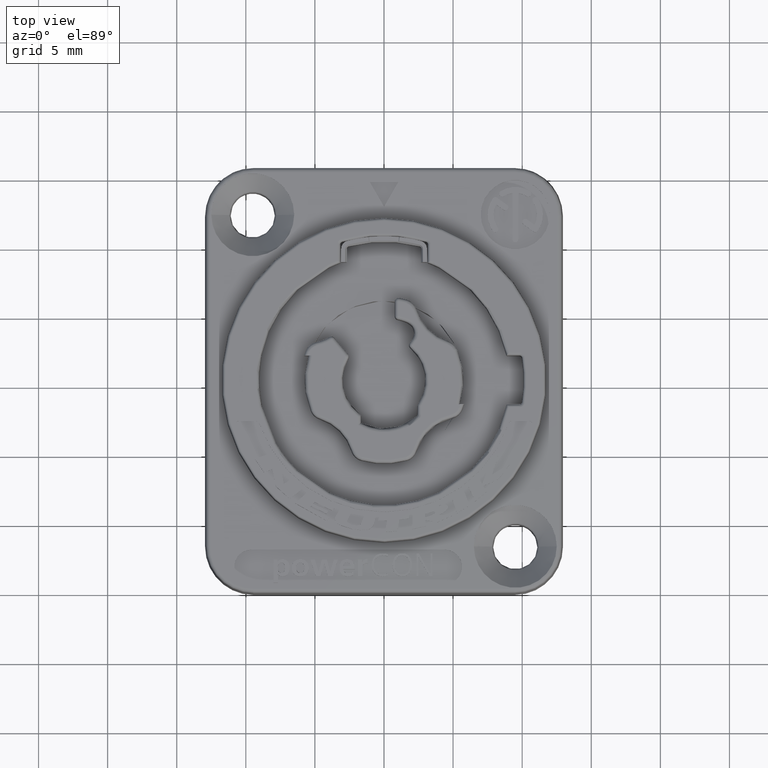
[diagram: clean part render]
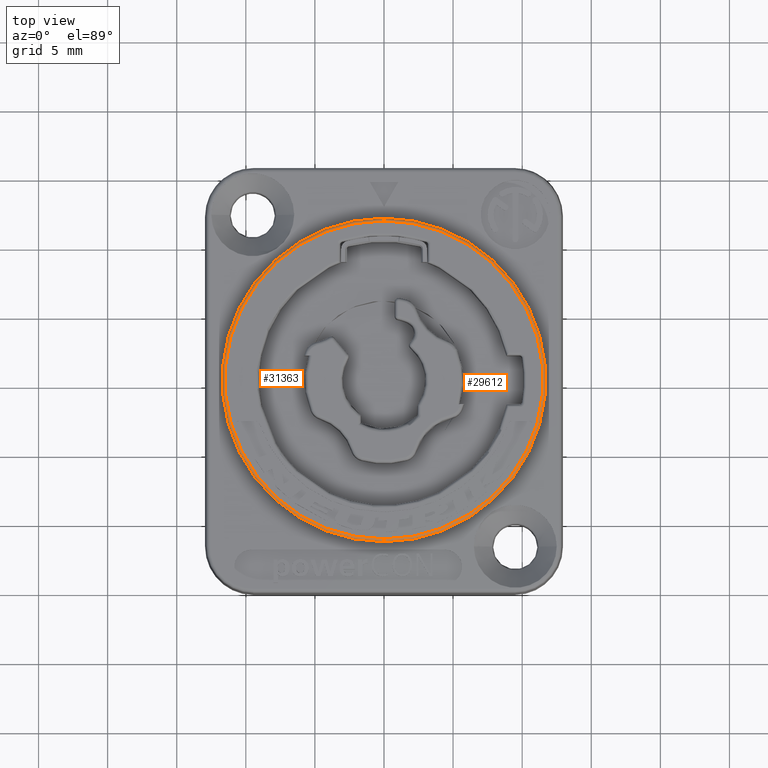
[diagram: same view with one multi-face feature highlighted, each face labeled with its STEP entity id]
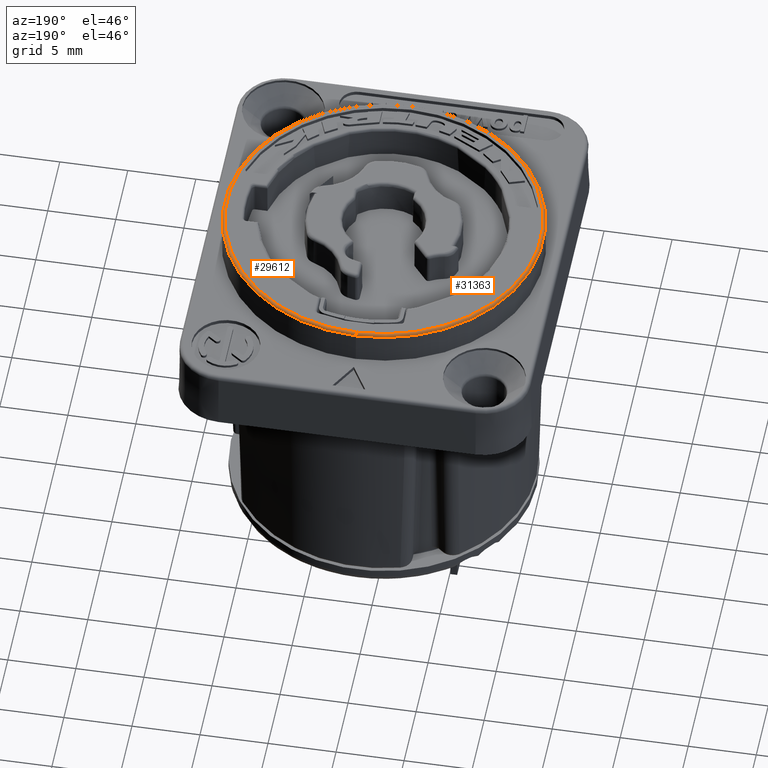
[diagram: same view with one multi-face feature highlighted, each face labeled with its STEP entity id]
A machine part, top view. The highlighted faces form ONE feature: a constant-radius fillet chain: 2 tangent blend faces with common blend radius 0.2 mm. The faces share edges in the B-rep.
A second angle (auxiliary view) of the same feature is appended — it is thin or edge-on in the first view.
Their STEP definitions:
[1] entity #29612 (Torus):
#7148=CARTESIAN_POINT('',(0.E0,0.E0,6.853490481287E0));
#7149=DIRECTION('',(0.E0,0.E0,1.E0));
#7150=DIRECTION('',(0.E0,-1.E0,0.E0));
#7151=AXIS2_PLACEMENT_3D('',#7148,#7149,#7150);
#7158=CARTESIAN_POINT('',(0.E0,-1.150895013181E1,6.85E0));
#7159=DIRECTION('',(1.E0,0.E0,0.E0));
#7160=DIRECTION('',(0.E0,0.E0,1.E0));
#7161=AXIS2_PLACEMENT_3D('',#7158,#7159,#7160);
#7181=CARTESIAN_POINT('',(0.E0,0.E0,7.05E0));
#7182=DIRECTION('',(0.E0,0.E0,1.E0));
#7183=DIRECTION('',(0.E0,-1.E0,0.E0));
#7184=AXIS2_PLACEMENT_3D('',#7181,#7182,#7183);
#8495=CARTESIAN_POINT('',(0.E0,1.150895013181E1,6.85E0));
#8496=DIRECTION('',(-1.E0,0.E0,0.E0));
#8497=DIRECTION('',(0.E0,1.776356839400E-14,1.E0));
#8498=AXIS2_PLACEMENT_3D('',#8495,#8496,#8497);
#19597=CARTESIAN_POINT('',(0.E0,-1.150895013181E1,7.05E0));
#19598=CARTESIAN_POINT('',(0.E0,1.150895013181E1,7.05E0));
#19599=VERTEX_POINT('',#19597);
#19600=VERTEX_POINT('',#19598);
#19601=CARTESIAN_POINT('',(0.E0,-1.170891967084E1,6.853490481287E0));
#19602=CARTESIAN_POINT('',(0.E0,1.170891967084E1,6.853490481287E0));
#19603=VERTEX_POINT('',#19601);
#19604=VERTEX_POINT('',#19602);
#29598=CARTESIAN_POINT('',(0.E0,0.E0,6.85E0));
#29599=DIRECTION('',(0.E0,0.E0,-1.E0));
#29600=DIRECTION('',(-1.396242133721E-3,-9.999990252535E-1,0.E0));
#29601=AXIS2_PLACEMENT_3D('',#29598,#29599,#29600);
#29602=TOROIDAL_SURFACE('',#29601,1.150895013181E1,2.E-1);
#29604=ORIENTED_EDGE('',*,*,#29603,.T.);
#29606=ORIENTED_EDGE('',*,*,#29605,.T.);
#29607=ORIENTED_EDGE('',*,*,#29588,.F.);
#29609=ORIENTED_EDGE('',*,*,#29608,.F.);
#29610=EDGE_LOOP('',(#29604,#29606,#29607,#29609));
#29611=FACE_OUTER_BOUND('',#29610,.F.);
#29612=ADVANCED_FACE('',(#29611),#29602,.T.);
#7152=CIRCLE('',#7151,1.170891967084E1);
#7162=CIRCLE('',#7161,2.E-1);
#7185=CIRCLE('',#7184,1.150895013181E1);
#8499=CIRCLE('',#8498,2.E-1);
#29588=EDGE_CURVE('',#19603,#19604,#7152,.T.);
#29603=EDGE_CURVE('',#19599,#19600,#7185,.T.);
#29605=EDGE_CURVE('',#19600,#19604,#8499,.T.);
#29608=EDGE_CURVE('',#19599,#19603,#7162,.T.);
[2] entity #31363 (Torus):
#7158=CARTESIAN_POINT('',(0.E0,-1.150895013181E1,6.85E0));
#7159=DIRECTION('',(1.E0,0.E0,0.E0));
#7160=DIRECTION('',(0.E0,0.E0,1.E0));
#7161=AXIS2_PLACEMENT_3D('',#7158,#7159,#7160);
#7186=CARTESIAN_POINT('',(0.E0,0.E0,7.05E0));
#7187=DIRECTION('',(0.E0,0.E0,1.E0));
#7188=DIRECTION('',(0.E0,1.E0,0.E0));
#7189=AXIS2_PLACEMENT_3D('',#7186,#7187,#7188);
#8495=CARTESIAN_POINT('',(0.E0,1.150895013181E1,6.85E0));
#8496=DIRECTION('',(-1.E0,0.E0,0.E0));
#8497=DIRECTION('',(0.E0,1.776356839400E-14,1.E0));
#8498=AXIS2_PLACEMENT_3D('',#8495,#8496,#8497);
#8500=CARTESIAN_POINT('',(0.E0,0.E0,6.853490481287E0));
#8501=DIRECTION('',(0.E0,0.E0,1.E0));
#8502=DIRECTION('',(0.E0,1.E0,0.E0));
#8503=AXIS2_PLACEMENT_3D('',#8500,#8501,#8502);
#19597=CARTESIAN_POINT('',(0.E0,-1.150895013181E1,7.05E0));
#19598=CARTESIAN_POINT('',(0.E0,1.150895013181E1,7.05E0));
#19599=VERTEX_POINT('',#19597);
#19600=VERTEX_POINT('',#19598);
#19601=CARTESIAN_POINT('',(0.E0,-1.170891967084E1,6.853490481287E0));
#19602=CARTESIAN_POINT('',(0.E0,1.170891967084E1,6.853490481287E0));
#19603=VERTEX_POINT('',#19601);
#19604=VERTEX_POINT('',#19602);
#31351=CARTESIAN_POINT('',(0.E0,0.E0,6.85E0));
#31352=DIRECTION('',(0.E0,0.E0,-1.E0));
#31353=DIRECTION('',(1.396242133721E-3,9.999990252535E-1,0.E0));
#31354=AXIS2_PLACEMENT_3D('',#31351,#31352,#31353);
#31355=TOROIDAL_SURFACE('',#31354,1.150895013181E1,2.E-1);
#31356=ORIENTED_EDGE('',*,*,#29619,.T.);
#31357=ORIENTED_EDGE('',*,*,#29608,.T.);
#31359=ORIENTED_EDGE('',*,*,#31358,.F.);
#31360=ORIENTED_EDGE('',*,*,#29605,.F.);
#31361=EDGE_LOOP('',(#31356,#31357,#31359,#31360));
#31362=FACE_OUTER_BOUND('',#31361,.F.);
#31363=ADVANCED_FACE('',(#31362),#31355,.T.);
#7162=CIRCLE('',#7161,2.E-1);
#7190=CIRCLE('',#7189,1.150895013181E1);
#8499=CIRCLE('',#8498,2.E-1);
#8504=CIRCLE('',#8503,1.170891967084E1);
#29605=EDGE_CURVE('',#19600,#19604,#8499,.T.);
#29608=EDGE_CURVE('',#19599,#19603,#7162,.T.);
#29619=EDGE_CURVE('',#19600,#19599,#7190,.T.);
#31358=EDGE_CURVE('',#19604,#19603,#8504,.T.);